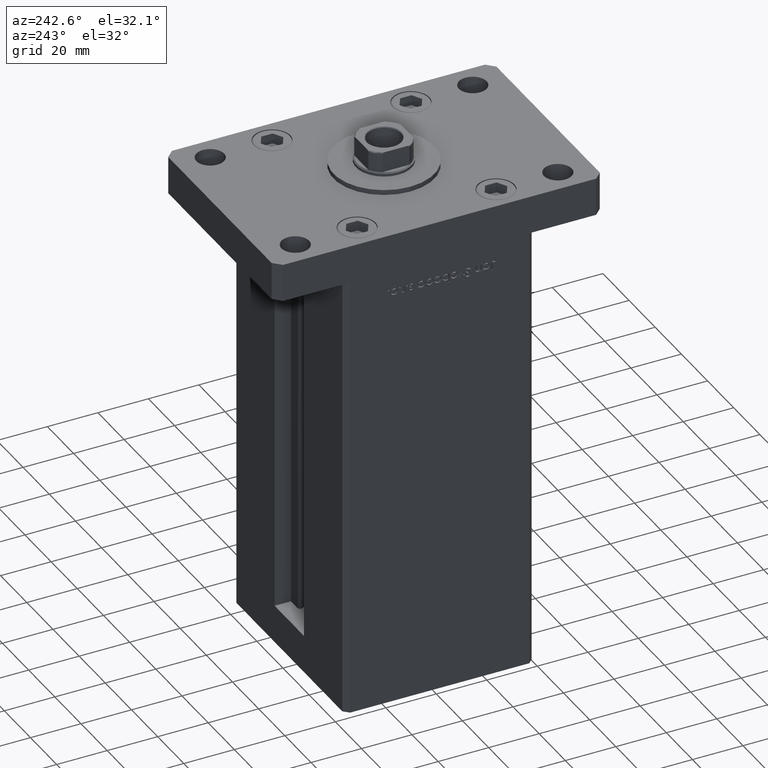
[diagram: clean part render]
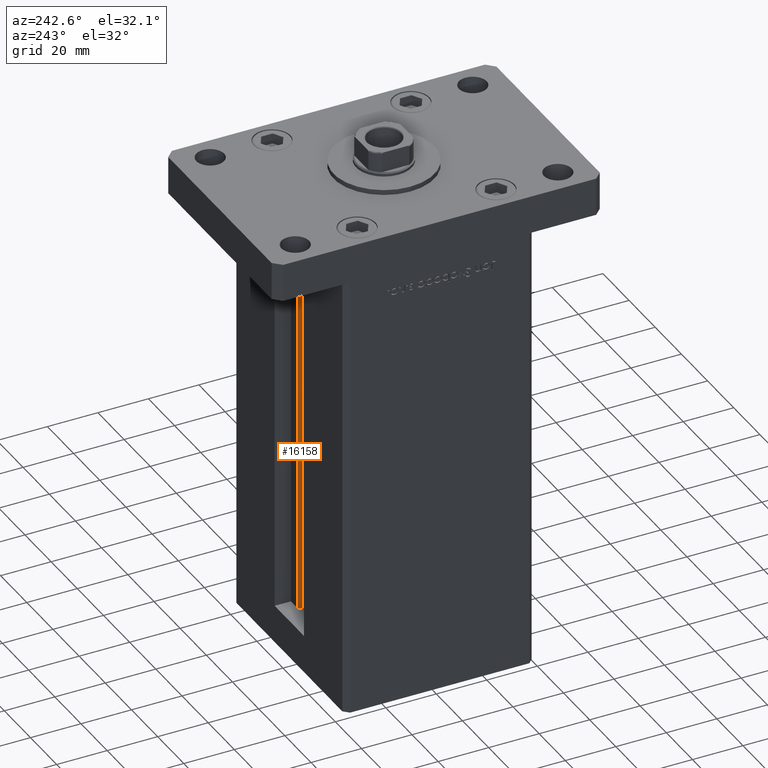
[diagram: same view with one face highlighted and labeled with its STEP entity id]
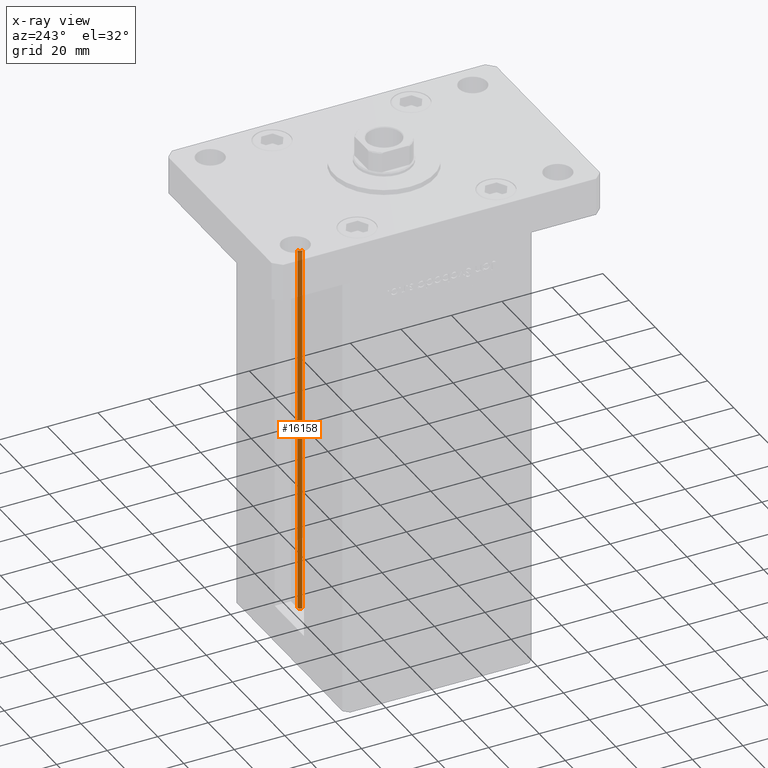
[diagram: x-ray of the same camera — body ghosted, the highlighted face saturated]
A machine part, auxiliary view. The second image highlights one B-rep face of the part: STEP entity #16158.
The next image is the same camera in x-ray: the body ghosted, the highlighted face saturated — about 13% of this face is hidden behind the body in this view.
In plain terms, the highlighted cylindrical surface (edge-blend (fillet) strip) has radius 0.9333 mm, axis along (0, 0, 1).
Its self-contained STEP definition (entity closure, byte-faithful):
#516 = DIRECTION ( 'NONE',  ( 0.000000000000000000, 0.000000000000000000, -1.000000000000000000 ) ) ;
#2696 = VERTEX_POINT ( 'NONE', #12113 ) ;
#3192 = CARTESIAN_POINT ( 'NONE',  ( 6.183333333333999704, 30.99999999999999289, 148.5000000000000000 ) ) ;
#3527 = VERTEX_POINT ( 'NONE', #3192 ) ;
#4409 = FACE_OUTER_BOUND ( 'NONE', #52574, .T. ) ;
#5280 = CIRCLE ( 'NONE', #35598, 0.9333333333340015914 ) ;
#7088 = ORIENTED_EDGE ( 'NONE', *, *, #40734, .F. ) ;
#8653 = DIRECTION ( 'NONE',  ( -0.000000000000000000, -0.000000000000000000, -1.000000000000000000 ) ) ;
#9141 = CARTESIAN_POINT ( 'NONE',  ( 6.183333333333999704, 30.06666666666599141, 148.5000000000000000 ) ) ;
#12113 = CARTESIAN_POINT ( 'NONE',  ( 5.375042956467943611, 29.59999999999899245, 0.000000000000000000 ) ) ;
#12300 = CARTESIAN_POINT ( 'NONE',  ( 5.375042956467943611, 29.59999999999899245, 0.000000000000000000 ) ) ;
#15734 = VERTEX_POINT ( 'NONE', #38439 ) ;
#16158 = ADVANCED_FACE ( 'NONE', ( #4409 ), #41851, .T. ) ;
#16858 = CARTESIAN_POINT ( 'NONE',  ( 6.183333333333999704, 30.06666666666599141, 0.000000000000000000 ) ) ;
#16970 = AXIS2_PLACEMENT_3D ( 'NONE', #33331, #8653, #44279 ) ;
#17619 = ORIENTED_EDGE ( 'NONE', *, *, #37483, .T. ) ;
#17944 = CARTESIAN_POINT ( 'NONE',  ( 6.183333333333999704, 30.99999999999999289, 0.000000000000000000 ) ) ;
#19362 = EDGE_CURVE ( 'NONE', #2696, #49223, #29993, .T. ) ;
#20509 = EDGE_CURVE ( 'NONE', #2696, #15734, #23694, .T. ) ;
#21331 = DIRECTION ( 'NONE',  ( 1.000000000000000000, 0.000000000000000000, 0.000000000000000000 ) ) ;
#23694 = LINE ( 'NONE', #12300, #27418 ) ;
#24233 = DIRECTION ( 'NONE',  ( -0.000000000000000000, -0.000000000000000000, 1.000000000000000000 ) ) ;
#26903 = VECTOR ( 'NONE', #46743, 1000.000000000000000 ) ;
#27418 = VECTOR ( 'NONE', #24233, 1000.000000000000000 ) ;
#29993 = CIRCLE ( 'NONE', #16970, 0.9333333333340015914 ) ;
#32523 = CARTESIAN_POINT ( 'NONE',  ( 6.183333333333999704, 30.99999999999999289, 0.000000000000000000 ) ) ;
#33331 = CARTESIAN_POINT ( 'NONE',  ( 6.183333333333999704, 30.06666666666599141, 0.000000000000000000 ) ) ;
#33693 = DIRECTION ( 'NONE',  ( 1.000000000000000000, 0.000000000000000000, 0.000000000000000000 ) ) ;
#35598 = AXIS2_PLACEMENT_3D ( 'NONE', #9141, #516, #21331 ) ;
#37483 = EDGE_CURVE ( 'NONE', #15734, #3527, #5280, .T. ) ;
#37782 = DIRECTION ( 'NONE',  ( -0.000000000000000000, -0.000000000000000000, 1.000000000000000000 ) ) ;
#38439 = CARTESIAN_POINT ( 'NONE',  ( 5.375042956467944499, 29.59999999999899245, 148.5000000000000000 ) ) ;
#40734 = EDGE_CURVE ( 'NONE', #49223, #3527, #42411, .T. ) ;
#41166 = AXIS2_PLACEMENT_3D ( 'NONE', #16858, #37782, #33693 ) ;
#41851 = CYLINDRICAL_SURFACE ( 'NONE', #41166, 0.9333333333340015914 ) ;
#42411 = LINE ( 'NONE', #17944, #26903 ) ;
#43934 = ORIENTED_EDGE ( 'NONE', *, *, #20509, .T. ) ;
#44279 = DIRECTION ( 'NONE',  ( 1.000000000000000000, 0.000000000000000000, 0.000000000000000000 ) ) ;
#46743 = DIRECTION ( 'NONE',  ( -0.000000000000000000, -0.000000000000000000, 1.000000000000000000 ) ) ;
#49223 = VERTEX_POINT ( 'NONE', #32523 ) ;
#51238 = ORIENTED_EDGE ( 'NONE', *, *, #19362, .F. ) ;
#52574 = EDGE_LOOP ( 'NONE', ( #7088, #51238, #43934, #17619 ) ) ;